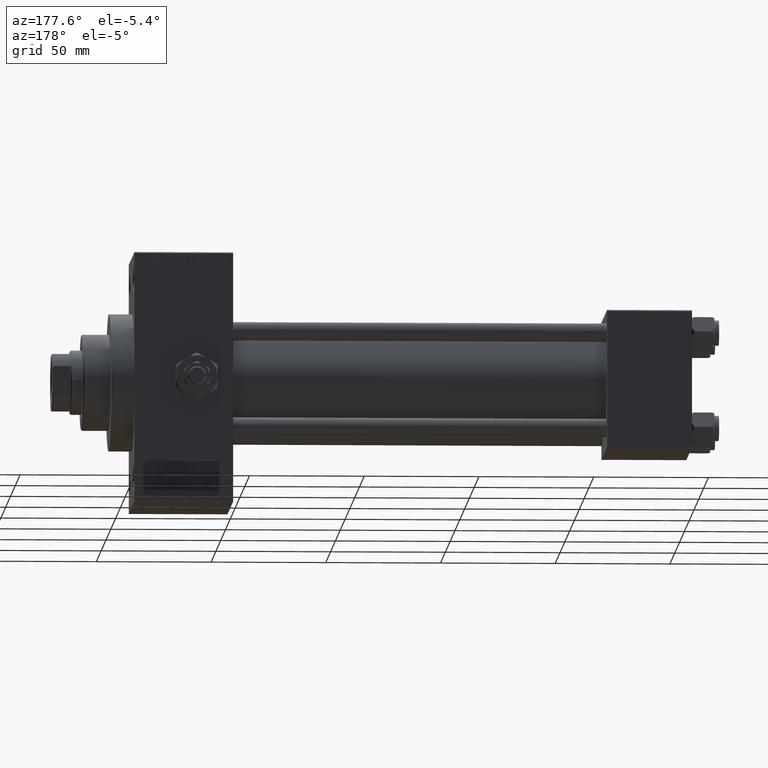
[diagram: clean part render]
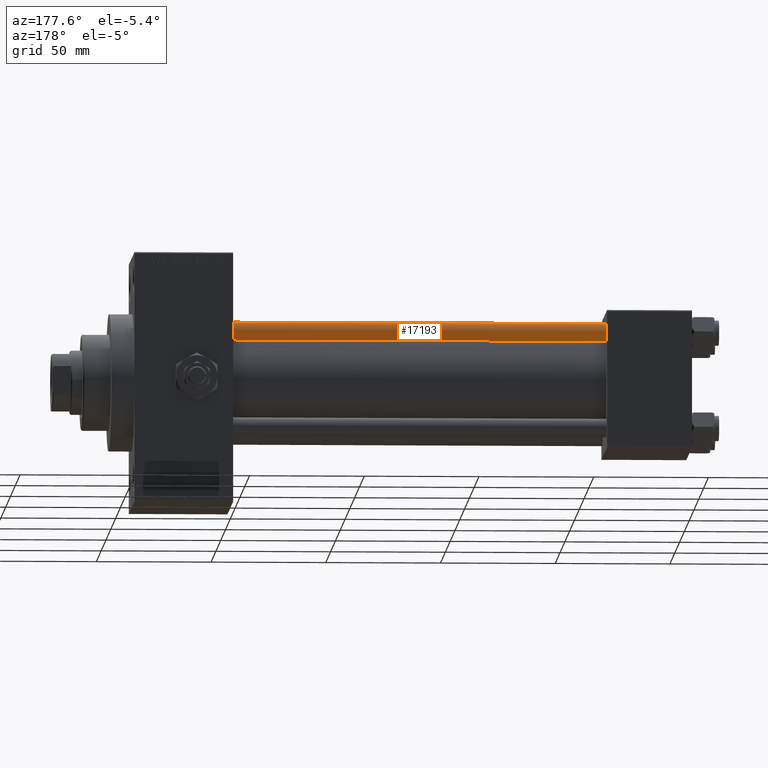
[diagram: same view with one face highlighted and labeled with its STEP entity id]
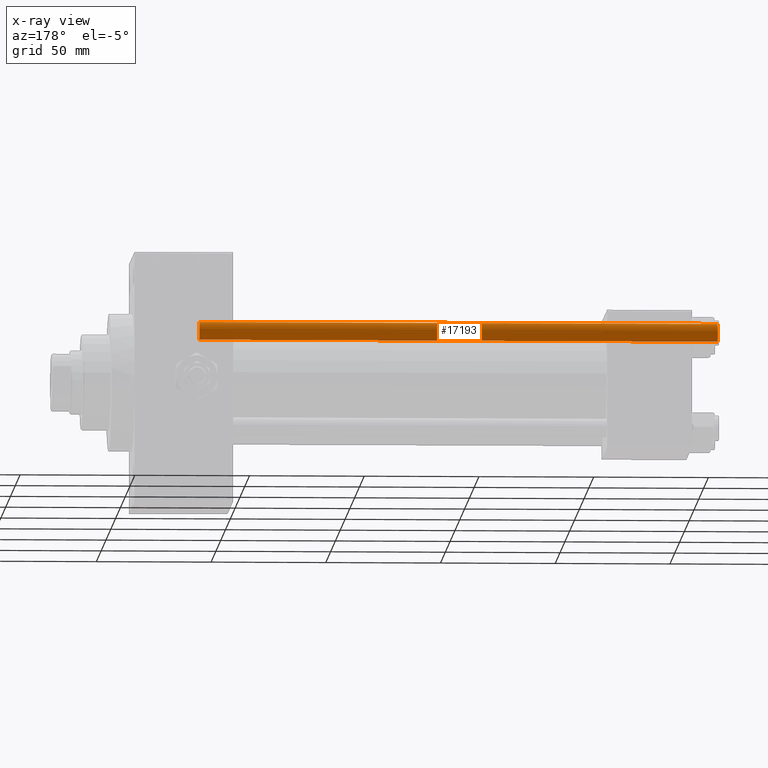
[diagram: x-ray of the same camera — body ghosted, the highlighted face saturated]
A machine part, auxiliary view. The second image highlights one B-rep face of the part: STEP entity #17193.
The next image is the same camera in x-ray: the body ghosted, the highlighted face saturated — about 0% of this face is hidden behind the body in this view.
In plain terms, the highlighted cylindrical surface (edge-blend (fillet) strip) has radius 4 mm, axis along (-1, -0, 0).
Its self-contained STEP definition (entity closure, byte-faithful):
#1009 = VECTOR ( 'NONE', #31068, 1000.000000000000000 ) ;
#2087 = EDGE_CURVE ( 'NONE', #39186, #6755, #31488, .T. ) ;
#3824 = ORIENTED_EDGE ( 'NONE', *, *, #2087, .T. ) ;
#4260 = DIRECTION ( 'NONE',  ( 1.000000000000000000, 0.000000000000000000, 0.000000000000000000 ) ) ;
#4270 = DIRECTION ( 'NONE',  ( -1.000000000000000000, 0.000000000000000000, 0.000000000000000000 ) ) ;
#5132 = AXIS2_PLACEMENT_3D ( 'NONE', #6593, #32473, #13496 ) ;
#6306 = CYLINDRICAL_SURFACE ( 'NONE', #20168, 4.000000000000000000 ) ;
#6593 = CARTESIAN_POINT ( 'NONE',  ( 0.000000000000000000, 0.000000000000000000, 0.5000000000002224887 ) ) ;
#6755 = VERTEX_POINT ( 'NONE', #48048 ) ;
#7934 = DIRECTION ( 'NONE',  ( -0.000000000000000000, -0.000000000000000000, -1.000000000000000000 ) ) ;
#9999 = FACE_OUTER_BOUND ( 'NONE', #29810, .T. ) ;
#10418 = EDGE_CURVE ( 'NONE', #31871, #32713, #11597, .T. ) ;
#11597 = LINE ( 'NONE', #45598, #1009 ) ;
#12289 = AXIS2_PLACEMENT_3D ( 'NONE', #46371, #23202, #4260 ) ;
#13496 = DIRECTION ( 'NONE',  ( 1.000000000000000000, 0.000000000000000000, 0.000000000000000000 ) ) ;
#16489 = EDGE_CURVE ( 'NONE', #31871, #39186, #46945, .T. ) ;
#17193 = ADVANCED_FACE ( 'NONE', ( #9999 ), #6306, .T. ) ;
#17234 = ORIENTED_EDGE ( 'NONE', *, *, #10418, .F. ) ;
#18454 = CARTESIAN_POINT ( 'NONE',  ( 4.000000000000000000, 4.898587196589411843E-16, 226.5000000000001421 ) ) ;
#20168 = AXIS2_PLACEMENT_3D ( 'NONE', #26190, #7934, #4270 ) ;
#23202 = DIRECTION ( 'NONE',  ( 0.000000000000000000, 0.000000000000000000, -1.000000000000000000 ) ) ;
#23670 = CARTESIAN_POINT ( 'NONE',  ( -4.000000000000000000, 0.000000000000000000, 0.5000000000002224887 ) ) ;
#24351 = ORIENTED_EDGE ( 'NONE', *, *, #45760, .T. ) ;
#25997 = VECTOR ( 'NONE', #43303, 1000.000000000000000 ) ;
#26190 = CARTESIAN_POINT ( 'NONE',  ( 0.000000000000000000, 0.000000000000000000, 227.0000000000000000 ) ) ;
#27547 = CARTESIAN_POINT ( 'NONE',  ( 4.000000000000000000, 4.898587196589411843E-16, 227.0000000000000000 ) ) ;
#27961 = CIRCLE ( 'NONE', #5132, 4.000000000000000000 ) ;
#29810 = EDGE_LOOP ( 'NONE', ( #42165, #3824, #24351, #17234 ) ) ;
#31068 = DIRECTION ( 'NONE',  ( -0.000000000000000000, -0.000000000000000000, -1.000000000000000000 ) ) ;
#31488 = LINE ( 'NONE', #27547, #25997 ) ;
#31871 = VERTEX_POINT ( 'NONE', #40434 ) ;
#32473 = DIRECTION ( 'NONE',  ( -0.000000000000000000, -0.000000000000000000, 1.000000000000000000 ) ) ;
#32713 = VERTEX_POINT ( 'NONE', #23670 ) ;
#39186 = VERTEX_POINT ( 'NONE', #18454 ) ;
#40434 = CARTESIAN_POINT ( 'NONE',  ( -4.000000000000000000, 0.000000000000000000, 226.5000000000001421 ) ) ;
#42165 = ORIENTED_EDGE ( 'NONE', *, *, #16489, .T. ) ;
#43303 = DIRECTION ( 'NONE',  ( -0.000000000000000000, -0.000000000000000000, -1.000000000000000000 ) ) ;
#45598 = CARTESIAN_POINT ( 'NONE',  ( -4.000000000000000000, 0.000000000000000000, 227.0000000000000000 ) ) ;
#45760 = EDGE_CURVE ( 'NONE', #6755, #32713, #27961, .T. ) ;
#46371 = CARTESIAN_POINT ( 'NONE',  ( 0.000000000000000000, 0.000000000000000000, 226.5000000000001421 ) ) ;
#46945 = CIRCLE ( 'NONE', #12289, 4.000000000000000000 ) ;
#48048 = CARTESIAN_POINT ( 'NONE',  ( 4.000000000000000000, 4.898587196589411843E-16, 0.5000000000002224887 ) ) ;